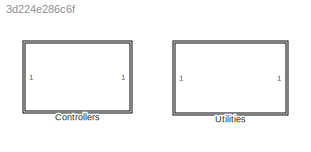
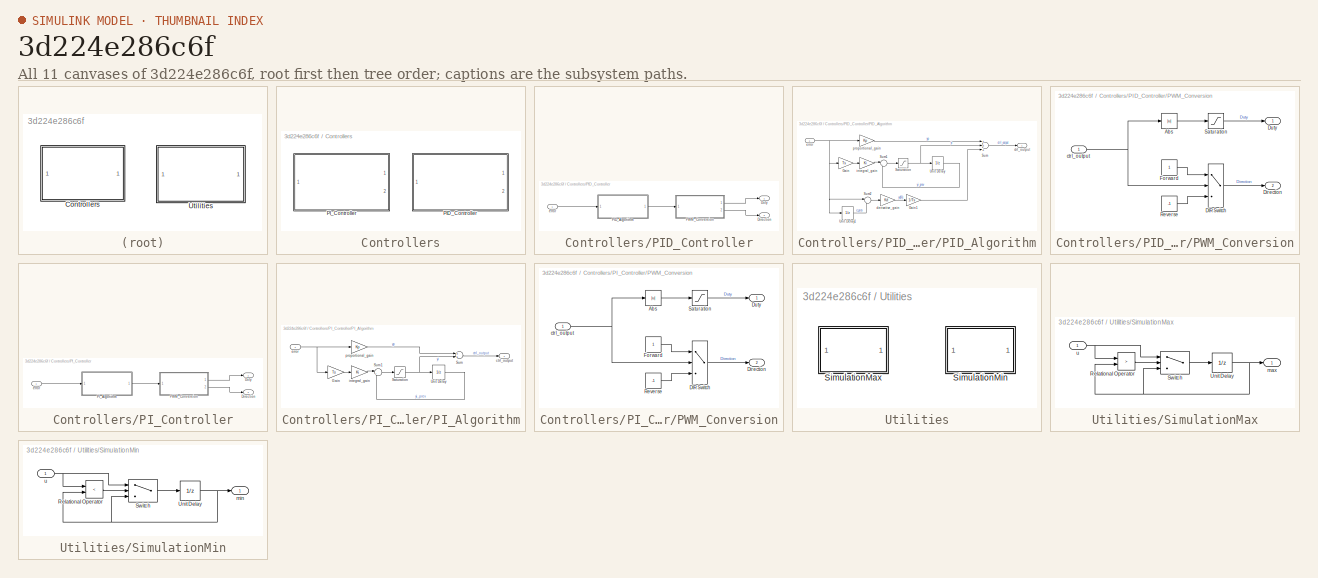
[diagram: thumbnail index - all 11 canvases of the model, root first then tree order]
MODEL slx_3d224e286c6f
KIND library
CONFIG AbsTol = auto
CONFIG EnableMultiTasking = off
CONFIG FixedStep = auto
CONFIG MaxStep = auto
CONFIG MinStep = auto
CONFIG RelTol = 1e-3
CONFIG SampleTimeConstraint = Unconstrained
CONFIG Solver = ode45
CONFIG SolverName = ode45
CONFIG StartTime = 0.0
CONFIG StopTime = 10.0
BLOCK [SubSystem] Controllers
  Ports = []
  RequestExecContextInheritance = off
BLOCK [SubSystem] Controllers/PID_Controller
  Ports = [1, 2]
  RequestExecContextInheritance = off
BLOCK [Outport] Controllers/PID_Controller/Direction
  IconDisplay = Port number
  Port = 2
BLOCK [Outport] Controllers/PID_Controller/Duty
  IconDisplay = Port number
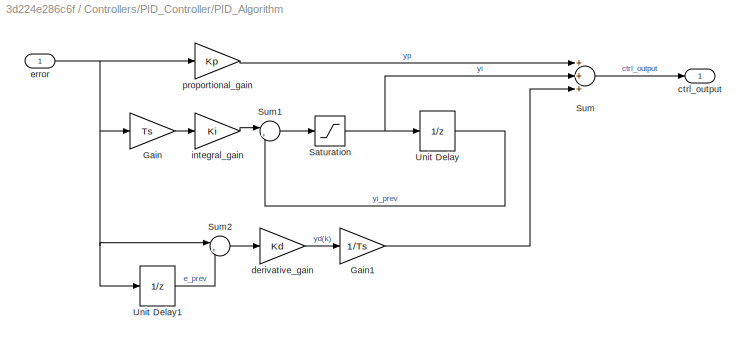
BLOCK [SubSystem] Controllers/PID_Controller/PID_Algorithm
  Ports = [1, 1]
  RequestExecContextInheritance = off
BLOCK [Gain] Controllers/PID_Controller/PID_Algorithm/Gain
  Gain = Ts
BLOCK [Gain] Controllers/PID_Controller/PID_Algorithm/Gain1
  Gain = 1/Ts
BLOCK [Saturate] Controllers/PID_Controller/PID_Algorithm/Saturation
  AttributesFormatString = Max: %<UpperLimit>\nMin: %<LowerLimit>
  InputPortMap = u0
  LowerLimit = -1
  Ports = [1, 1]
  UpperLimit = 1
BLOCK [Sum] Controllers/PID_Controller/PID_Algorithm/Sum
  Inputs = +++
  Ports = [3, 1]
BLOCK [Sum] Controllers/PID_Controller/PID_Algorithm/Sum1
  IconShape = round
  Inputs = |++
  Ports = [2, 1]
BLOCK [Sum] Controllers/PID_Controller/PID_Algorithm/Sum2
  IconShape = round
  InputSameDT = off
  Inputs = |+-
  OutDataTypeStr = Inherit: Inherit via internal rule
  Ports = [2, 1]
BLOCK [UnitDelay] Controllers/PID_Controller/PID_Algorithm/Unit Delay
  AttributesFormatString = yi0 = %<X0>\nSample time = %<SampleTime>
  SampleTime = Ts
BLOCK [UnitDelay] Controllers/PID_Controller/PID_Algorithm/Unit Delay1
  AttributesFormatString = Sample Time = %<SampleTime>\nIC = %<X0>
  SampleTime = Ts
BLOCK [Outport] Controllers/PID_Controller/PID_Algorithm/ctrl_output
  IconDisplay = Port number
BLOCK [Gain] Controllers/PID_Controller/PID_Algorithm/derivative_gain
  Gain = Kd
BLOCK [Inport] Controllers/PID_Controller/PID_Algorithm/error
  AttributesFormatString = Sample time = %<SampleTime>
  IconDisplay = Port number
  SampleTime = Ts
BLOCK [Gain] Controllers/PID_Controller/PID_Algorithm/integral_gain
  Gain = Ki
BLOCK [Gain] Controllers/PID_Controller/PID_Algorithm/proportional_gain
  Gain = Kp
BLOCK [SubSystem] Controllers/PID_Controller/PWM_Conversion
  Ports = [1, 2]
  RequestExecContextInheritance = off
BLOCK [Abs] Controllers/PID_Controller/PWM_Conversion/Abs
  SaturateOnIntegerOverflow = off
BLOCK [Switch] Controllers/PID_Controller/PWM_Conversion/DIR Switch
  AttributesFormatString = Criteria: %<Criteria>\nThreshold: %<Threshold>
  InputSameDT = off
  SaturateOnIntegerOverflow = off
BLOCK [Outport] Controllers/PID_Controller/PWM_Conversion/Direction
  IconDisplay = Port number
  Port = 2
BLOCK [Outport] Controllers/PID_Controller/PWM_Conversion/Duty 
  IconDisplay = Port number
BLOCK [Constant] Controllers/PID_Controller/PWM_Conversion/Forward
  OutDataTypeStr = double
BLOCK [Constant] Controllers/PID_Controller/PWM_Conversion/Reverse
  OutDataTypeStr = double
  Value = -1
BLOCK [Saturate] Controllers/PID_Controller/PWM_Conversion/Saturation
  AttributesFormatString = %<LowerLimit> < duty < %<UpperLimit>
  InputPortMap = u0
  LowerLimit = 0
  Ports = [1, 1]
  UpperLimit = 1
BLOCK [Inport] Controllers/PID_Controller/PWM_Conversion/ctrl_output
  IconDisplay = Port number
BLOCK [Inport] Controllers/PID_Controller/error
  IconDisplay = Port number
  SampleTime = Ts
BLOCK [SubSystem] Controllers/PI_Controller
  Ports = [1, 2]
  RequestExecContextInheritance = off
BLOCK [Outport] Controllers/PI_Controller/Direction
  IconDisplay = Port number
  Port = 2
BLOCK [Outport] Controllers/PI_Controller/Duty
  IconDisplay = Port number
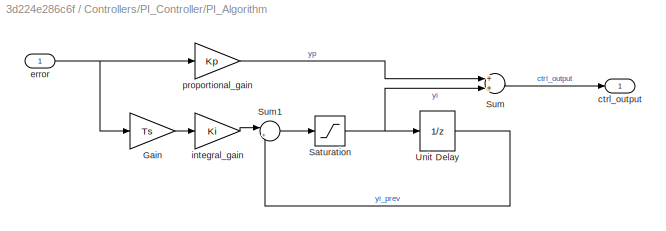
BLOCK [SubSystem] Controllers/PI_Controller/PI_Algorithm
  Ports = [1, 1]
  RequestExecContextInheritance = off
BLOCK [Gain] Controllers/PI_Controller/PI_Algorithm/Gain
  Gain = Ts
BLOCK [Saturate] Controllers/PI_Controller/PI_Algorithm/Saturation
  AttributesFormatString = Max: %<UpperLimit>\nMin: %<LowerLimit>
  InputPortMap = u0
  LowerLimit = -1
  Ports = [1, 1]
  UpperLimit = 1
BLOCK [Sum] Controllers/PI_Controller/PI_Algorithm/Sum
  Ports = [2, 1]
BLOCK [Sum] Controllers/PI_Controller/PI_Algorithm/Sum1
  IconShape = round
  Inputs = |++
  Ports = [2, 1]
BLOCK [UnitDelay] Controllers/PI_Controller/PI_Algorithm/Unit Delay
  AttributesFormatString = yi0 = %<X0>\nSample time = %<SampleTime>
  SampleTime = Ts
BLOCK [Outport] Controllers/PI_Controller/PI_Algorithm/ctrl_output
  IconDisplay = Port number
BLOCK [Inport] Controllers/PI_Controller/PI_Algorithm/error
  AttributesFormatString = Sample time = %<SampleTime>
  IconDisplay = Port number
  SampleTime = Ts
BLOCK [Gain] Controllers/PI_Controller/PI_Algorithm/integral_gain
  Gain = Ki
BLOCK [Gain] Controllers/PI_Controller/PI_Algorithm/proportional_gain
  Gain = Kp
BLOCK [SubSystem] Controllers/PI_Controller/PWM_Conversion
  Ports = [1, 2]
  RequestExecContextInheritance = off
BLOCK [Abs] Controllers/PI_Controller/PWM_Conversion/Abs
  SaturateOnIntegerOverflow = off
BLOCK [Switch] Controllers/PI_Controller/PWM_Conversion/DIR Switch
  AttributesFormatString = Criteria: %<Criteria>\nThreshold: %<Threshold>
  InputSameDT = off
  SaturateOnIntegerOverflow = off
BLOCK [Outport] Controllers/PI_Controller/PWM_Conversion/Direction
  IconDisplay = Port number
  Port = 2
BLOCK [Outport] Controllers/PI_Controller/PWM_Conversion/Duty 
  IconDisplay = Port number
BLOCK [Constant] Controllers/PI_Controller/PWM_Conversion/Forward
  OutDataTypeStr = double
BLOCK [Constant] Controllers/PI_Controller/PWM_Conversion/Reverse
  OutDataTypeStr = double
  Value = -1
BLOCK [Saturate] Controllers/PI_Controller/PWM_Conversion/Saturation
  AttributesFormatString = %<LowerLimit> < duty < %<UpperLimit>
  InputPortMap = u0
  LowerLimit = 0
  Ports = [1, 1]
  UpperLimit = 1
BLOCK [Inport] Controllers/PI_Controller/PWM_Conversion/ctrl_output
  IconDisplay = Port number
BLOCK [Inport] Controllers/PI_Controller/error
  IconDisplay = Port number
  SampleTime = Ts
BLOCK [SubSystem] Utilities
  Ports = []
  RequestExecContextInheritance = off
BLOCK [SubSystem] Utilities/SimulationMax
  Ports = [1, 1]
  RequestExecContextInheritance = off
BLOCK [RelationalOperator] Utilities/SimulationMax/Relational Operator
  InputSameDT = off
  Operator = >
  OutDataTypeStr = boolean
  Ports = [2, 1]
BLOCK [Switch] Utilities/SimulationMax/Switch
  Criteria = u2 ~= 0
  InputSameDT = off
  SaturateOnIntegerOverflow = off
BLOCK [UnitDelay] Utilities/SimulationMax/Unit Delay
  InputProcessing = Elements as channels (sample based)
  SampleTime = -1
BLOCK [Outport] Utilities/SimulationMax/max
  IconDisplay = Port number
BLOCK [Inport] Utilities/SimulationMax/u
  IconDisplay = Port number
BLOCK [SubSystem] Utilities/SimulationMin
  Ports = [1, 1]
  RequestExecContextInheritance = off
BLOCK [RelationalOperator] Utilities/SimulationMin/Relational Operator
  InputSameDT = off
  Operator = <
  OutDataTypeStr = boolean
  Ports = [2, 1]
BLOCK [Switch] Utilities/SimulationMin/Switch
  Criteria = u2 ~= 0
  InputSameDT = off
  SaturateOnIntegerOverflow = off
BLOCK [UnitDelay] Utilities/SimulationMin/Unit Delay
  InputProcessing = Elements as channels (sample based)
  SampleTime = -1
BLOCK [Outport] Utilities/SimulationMin/min
  IconDisplay = Port number
BLOCK [Inport] Utilities/SimulationMin/u
  IconDisplay = Port number
LINE Controllers/PID_Controller/PID_Algorithm/Gain1:1 -> Controllers/PID_Controller/PID_Algorithm/Sum:3
LINE Controllers/PID_Controller/PID_Algorithm/Gain:1 -> Controllers/PID_Controller/PID_Algorithm/integral_gain:1
NET Controllers/PID_Controller/PID_Algorithm/Saturation:1 -> Controllers/PID_Controller/PID_Algorithm/Sum:2, Controllers/PID_Controller/PID_Algorithm/Unit Delay:1
LINE Controllers/PID_Controller/PID_Algorithm/Sum1:1 -> Controllers/PID_Controller/PID_Algorithm/Saturation:1
LINE Controllers/PID_Controller/PID_Algorithm/Sum2:1 -> Controllers/PID_Controller/PID_Algorithm/derivative_gain:1
LINE Controllers/PID_Controller/PID_Algorithm/Sum:1 -> Controllers/PID_Controller/PID_Algorithm/ctrl_output:1
LINE Controllers/PID_Controller/PID_Algorithm/Unit Delay1:1 -> Controllers/PID_Controller/PID_Algorithm/Sum2:2
LINE Controllers/PID_Controller/PID_Algorithm/Unit Delay:1 -> Controllers/PID_Controller/PID_Algorithm/Sum1:2
LINE Controllers/PID_Controller/PID_Algorithm/derivative_gain:1 -> Controllers/PID_Controller/PID_Algorithm/Gain1:1
NET Controllers/PID_Controller/PID_Algorithm/error:1 -> Controllers/PID_Controller/PID_Algorithm/Gain:1, Controllers/PID_Controller/PID_Algorithm/Sum2:1, Controllers/PID_Controller/PID_Algorithm/Unit Delay1:1, Controllers/PID_Controller/PID_Algorithm/proportional_gain:1
LINE Controllers/PID_Controller/PID_Algorithm/integral_gain:1 -> Controllers/PID_Controller/PID_Algorithm/Sum1:1
LINE Controllers/PID_Controller/PID_Algorithm/proportional_gain:1 -> Controllers/PID_Controller/PID_Algorithm/Sum:1
LINE Controllers/PID_Controller/PID_Algorithm:1 -> Controllers/PID_Controller/PWM_Conversion:1
LINE Controllers/PID_Controller/PWM_Conversion/Abs:1 -> Controllers/PID_Controller/PWM_Conversion/Saturation:1
LINE Controllers/PID_Controller/PWM_Conversion/DIR Switch:1 -> Controllers/PID_Controller/PWM_Conversion/Direction:1
LINE Controllers/PID_Controller/PWM_Conversion/Forward:1 -> Controllers/PID_Controller/PWM_Conversion/DIR Switch:1
LINE Controllers/PID_Controller/PWM_Conversion/Reverse:1 -> Controllers/PID_Controller/PWM_Conversion/DIR Switch:3
LINE Controllers/PID_Controller/PWM_Conversion/Saturation:1 -> Controllers/PID_Controller/PWM_Conversion/Duty :1
NET Controllers/PID_Controller/PWM_Conversion/ctrl_output:1 -> Controllers/PID_Controller/PWM_Conversion/Abs:1, Controllers/PID_Controller/PWM_Conversion/DIR Switch:2
LINE Controllers/PID_Controller/PWM_Conversion:1 -> Controllers/PID_Controller/Duty:1
LINE Controllers/PID_Controller/PWM_Conversion:2 -> Controllers/PID_Controller/Direction:1
LINE Controllers/PID_Controller/error:1 -> Controllers/PID_Controller/PID_Algorithm:1
LINE Controllers/PI_Controller/PI_Algorithm/Gain:1 -> Controllers/PI_Controller/PI_Algorithm/integral_gain:1
NET Controllers/PI_Controller/PI_Algorithm/Saturation:1 -> Controllers/PI_Controller/PI_Algorithm/Sum:2, Controllers/PI_Controller/PI_Algorithm/Unit Delay:1
LINE Controllers/PI_Controller/PI_Algorithm/Sum1:1 -> Controllers/PI_Controller/PI_Algorithm/Saturation:1
LINE Controllers/PI_Controller/PI_Algorithm/Sum:1 -> Controllers/PI_Controller/PI_Algorithm/ctrl_output:1
LINE Controllers/PI_Controller/PI_Algorithm/Unit Delay:1 -> Controllers/PI_Controller/PI_Algorithm/Sum1:2
NET Controllers/PI_Controller/PI_Algorithm/error:1 -> Controllers/PI_Controller/PI_Algorithm/Gain:1, Controllers/PI_Controller/PI_Algorithm/proportional_gain:1
LINE Controllers/PI_Controller/PI_Algorithm/integral_gain:1 -> Controllers/PI_Controller/PI_Algorithm/Sum1:1
LINE Controllers/PI_Controller/PI_Algorithm/proportional_gain:1 -> Controllers/PI_Controller/PI_Algorithm/Sum:1
LINE Controllers/PI_Controller/PI_Algorithm:1 -> Controllers/PI_Controller/PWM_Conversion:1
LINE Controllers/PI_Controller/PWM_Conversion/Abs:1 -> Controllers/PI_Controller/PWM_Conversion/Saturation:1
LINE Controllers/PI_Controller/PWM_Conversion/DIR Switch:1 -> Controllers/PI_Controller/PWM_Conversion/Direction:1
LINE Controllers/PI_Controller/PWM_Conversion/Forward:1 -> Controllers/PI_Controller/PWM_Conversion/DIR Switch:1
LINE Controllers/PI_Controller/PWM_Conversion/Reverse:1 -> Controllers/PI_Controller/PWM_Conversion/DIR Switch:3
LINE Controllers/PI_Controller/PWM_Conversion/Saturation:1 -> Controllers/PI_Controller/PWM_Conversion/Duty :1
NET Controllers/PI_Controller/PWM_Conversion/ctrl_output:1 -> Controllers/PI_Controller/PWM_Conversion/Abs:1, Controllers/PI_Controller/PWM_Conversion/DIR Switch:2
LINE Controllers/PI_Controller/PWM_Conversion:1 -> Controllers/PI_Controller/Duty:1
LINE Controllers/PI_Controller/PWM_Conversion:2 -> Controllers/PI_Controller/Direction:1
LINE Controllers/PI_Controller/error:1 -> Controllers/PI_Controller/PI_Algorithm:1
LINE Utilities/SimulationMax/Relational Operator:1 -> Utilities/SimulationMax/Switch:2
LINE Utilities/SimulationMax/Switch:1 -> Utilities/SimulationMax/Unit Delay:1
NET Utilities/SimulationMax/Unit Delay:1 -> Utilities/SimulationMax/Relational Operator:2, Utilities/SimulationMax/Switch:3, Utilities/SimulationMax/max:1
NET Utilities/SimulationMax/u:1 -> Utilities/SimulationMax/Relational Operator:1, Utilities/SimulationMax/Switch:1
LINE Utilities/SimulationMin/Relational Operator:1 -> Utilities/SimulationMin/Switch:2
LINE Utilities/SimulationMin/Switch:1 -> Utilities/SimulationMin/Unit Delay:1
NET Utilities/SimulationMin/Unit Delay:1 -> Utilities/SimulationMin/Relational Operator:2, Utilities/SimulationMin/Switch:3, Utilities/SimulationMin/min:1
NET Utilities/SimulationMin/u:1 -> Utilities/SimulationMin/Relational Operator:1, Utilities/SimulationMin/Switch:1
note: NET lines group one-source signal fan-out (src -> all destinations, sorted); 1:1 wires keep LINE
